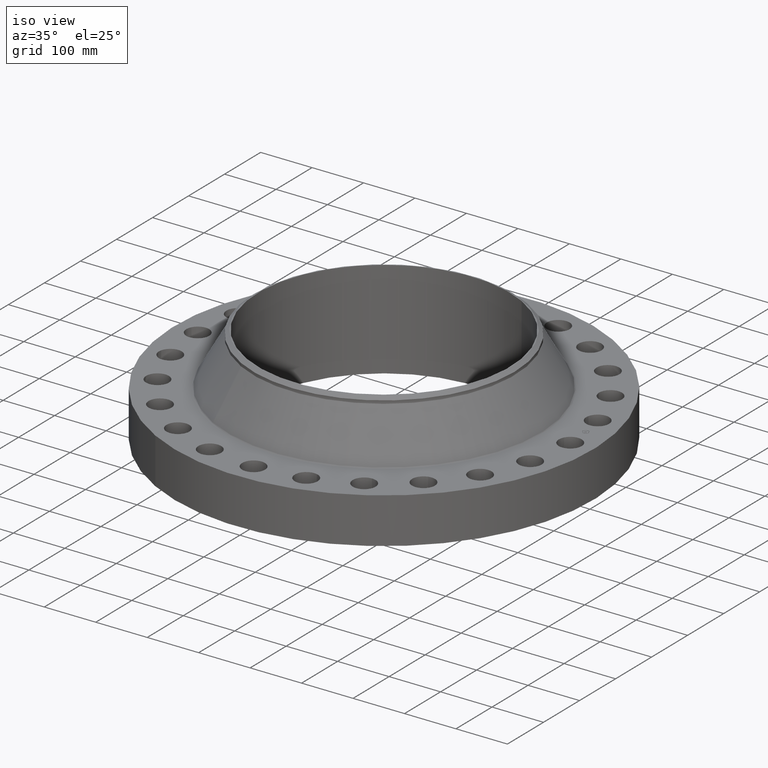
[diagram: clean part render]
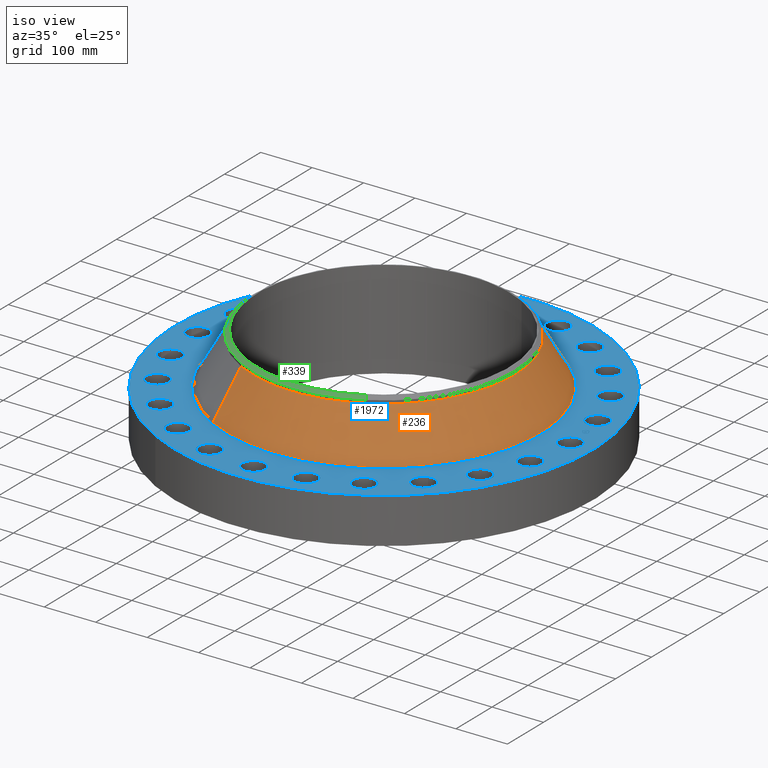
[diagram: same view with three faces highlighted in distinct colors, each labeled with its STEP entity id]
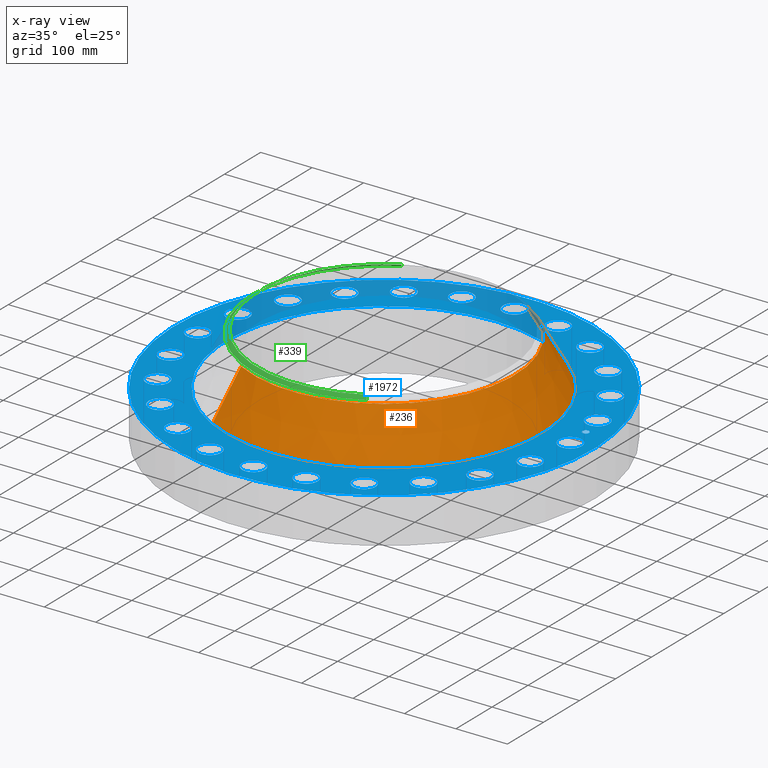
[diagram: x-ray of the same camera — body ghosted, the three highlighted faces saturated]
A machine part, iso view with three faces highlighted in distinct colors.
The next image is the same camera in x-ray (body ghosted, the three faces saturated) — at least one of them is partly hidden behind the body in this view.
Their STEP definitions:

[orange] entity #236 — the highlighted conical surface has half-angle 29.49 deg.
#172=AXIS2_PLACEMENT_3D('Circle Axis2P3D',#170,#171,$) ;
#209=AXIS2_PLACEMENT_3D('Cone Axis2P3D',#206,#207,#208) ;
#220=AXIS2_PLACEMENT_3D('Circle Axis2P3D',#218,#219,$) ;
#167=CARTESIAN_POINT('Vertex',(5.73658691231,10.5007519075,3.56092769751)) ;
#170=CARTESIAN_POINT('Axis2P3D Location',(0.,0.,3.56092769751)) ;
#174=CARTESIAN_POINT('Vertex',(-5.73658691231,-10.5007519075,3.56092769751)) ;
#206=CARTESIAN_POINT('Axis2P3D Location',(0.,0.,7.03645135497)) ;
#211=CARTESIAN_POINT('Line Origine',(5.26542114919,9.63828876323,5.29868952624)) ;
#215=CARTESIAN_POINT('Vertex',(4.79425538606,8.77582561894,7.03645135497)) ;
#218=CARTESIAN_POINT('Axis2P3D Location',(0.,0.,7.03645135497)) ;
#222=CARTESIAN_POINT('Vertex',(-4.79425538606,-8.77582561894,7.03645135497)) ;
#225=CARTESIAN_POINT('Line Origine',(-5.26542114919,-9.63828876323,5.29868952624)) ;
#171=DIRECTION('Axis2P3D Direction',(0.,0.,-0.0393700787402)) ;
#207=DIRECTION('Axis2P3D Direction',(0.,0.,-0.0393700787402)) ;
#208=DIRECTION('Axis2P3D XDirection',(-0.0188750212049,-0.0345504945626,0.)) ;
#212=DIRECTION('Vector Direction',(0.00929159135356,0.0170081438879,-0.034269410144)) ;
#219=DIRECTION('Axis2P3D Direction',(0.,0.,-0.0393700787402)) ;
#226=DIRECTION('Vector Direction',(-0.00929159135356,-0.0170081438879,-0.034269410144)) ;
#213=VECTOR('Line Direction',#212,0.0393700787402) ;
#227=VECTOR('Line Direction',#226,0.0393700787402) ;
#231=ORIENTED_EDGE('',*,*,#176,.F.) ;
#232=ORIENTED_EDGE('',*,*,#217,.T.) ;
#233=ORIENTED_EDGE('',*,*,#224,.T.) ;
#234=ORIENTED_EDGE('',*,*,#229,.F.) ;
#236=ADVANCED_FACE('PartBody',(#235),#210,.T.) ;
#173=CIRCLE('generated circle',#172,11.965543031) ;
#221=CIRCLE('generated circle',#220,10.) ;
#210=CONICAL_SURFACE('Cone',#209,10.,0.514694771037) ;
#176=EDGE_CURVE('',#168,#175,#173,.T.) ;
#217=EDGE_CURVE('',#168,#216,#214,.F.) ;
#224=EDGE_CURVE('',#216,#223,#221,.T.) ;
#229=EDGE_CURVE('',#175,#223,#228,.F.) ;
#230=EDGE_LOOP('',(#231,#232,#233,#234)) ;
#235=FACE_OUTER_BOUND('',#230,.T.) ;
#214=LINE('Line',#211,#213) ;
#228=LINE('Line',#225,#227) ;
#168=VERTEX_POINT('',#167) ;
#175=VERTEX_POINT('',#174) ;
#216=VERTEX_POINT('',#215) ;
#223=VERTEX_POINT('',#222) ;

[blue] entity #1972 — the highlighted planar face has unit normal (0, 0, -1).
#65=AXIS2_PLACEMENT_3D('Circle Axis2P3D',#63,#64,$) ;
#82=AXIS2_PLACEMENT_3D('Circle Axis2P3D',#80,#81,$) ;
#115=AXIS2_PLACEMENT_3D('Circle Axis2P3D',#113,#114,$) ;
#139=AXIS2_PLACEMENT_3D('Circle Axis2P3D',#137,#138,$) ;
#156=AXIS2_PLACEMENT_3D('Circle Axis2P3D',#154,#155,$) ;
#191=AXIS2_PLACEMENT_3D('Circle Axis2P3D',#189,#190,$) ;
#877=AXIS2_PLACEMENT_3D('Circle Axis2P3D',#875,#876,$) ;
#889=AXIS2_PLACEMENT_3D('Circle Axis2P3D',#887,#888,$) ;
#920=AXIS2_PLACEMENT_3D('Circle Axis2P3D',#918,#919,$) ;
#932=AXIS2_PLACEMENT_3D('Circle Axis2P3D',#930,#931,$) ;
#963=AXIS2_PLACEMENT_3D('Circle Axis2P3D',#961,#962,$) ;
#975=AXIS2_PLACEMENT_3D('Circle Axis2P3D',#973,#974,$) ;
#1006=AXIS2_PLACEMENT_3D('Circle Axis2P3D',#1004,#1005,$) ;
#1018=AXIS2_PLACEMENT_3D('Circle Axis2P3D',#1016,#1017,$) ;
#1049=AXIS2_PLACEMENT_3D('Circle Axis2P3D',#1047,#1048,$) ;
#1061=AXIS2_PLACEMENT_3D('Circle Axis2P3D',#1059,#1060,$) ;
#1092=AXIS2_PLACEMENT_3D('Circle Axis2P3D',#1090,#1091,$) ;
#1104=AXIS2_PLACEMENT_3D('Circle Axis2P3D',#1102,#1103,$) ;
#1135=AXIS2_PLACEMENT_3D('Circle Axis2P3D',#1133,#1134,$) ;
#1147=AXIS2_PLACEMENT_3D('Circle Axis2P3D',#1145,#1146,$) ;
#1178=AXIS2_PLACEMENT_3D('Circle Axis2P3D',#1176,#1177,$) ;
#1190=AXIS2_PLACEMENT_3D('Circle Axis2P3D',#1188,#1189,$) ;
#1221=AXIS2_PLACEMENT_3D('Circle Axis2P3D',#1219,#1220,$) ;
#1233=AXIS2_PLACEMENT_3D('Circle Axis2P3D',#1231,#1232,$) ;
#1264=AXIS2_PLACEMENT_3D('Circle Axis2P3D',#1262,#1263,$) ;
#1276=AXIS2_PLACEMENT_3D('Circle Axis2P3D',#1274,#1275,$) ;
#1307=AXIS2_PLACEMENT_3D('Circle Axis2P3D',#1305,#1306,$) ;
#1319=AXIS2_PLACEMENT_3D('Circle Axis2P3D',#1317,#1318,$) ;
#1350=AXIS2_PLACEMENT_3D('Circle Axis2P3D',#1348,#1349,$) ;
#1362=AXIS2_PLACEMENT_3D('Circle Axis2P3D',#1360,#1361,$) ;
#1393=AXIS2_PLACEMENT_3D('Circle Axis2P3D',#1391,#1392,$) ;
#1405=AXIS2_PLACEMENT_3D('Circle Axis2P3D',#1403,#1404,$) ;
#1436=AXIS2_PLACEMENT_3D('Circle Axis2P3D',#1434,#1435,$) ;
#1448=AXIS2_PLACEMENT_3D('Circle Axis2P3D',#1446,#1447,$) ;
#1479=AXIS2_PLACEMENT_3D('Circle Axis2P3D',#1477,#1478,$) ;
#1491=AXIS2_PLACEMENT_3D('Circle Axis2P3D',#1489,#1490,$) ;
#1522=AXIS2_PLACEMENT_3D('Circle Axis2P3D',#1520,#1521,$) ;
#1534=AXIS2_PLACEMENT_3D('Circle Axis2P3D',#1532,#1533,$) ;
#1565=AXIS2_PLACEMENT_3D('Circle Axis2P3D',#1563,#1564,$) ;
#1577=AXIS2_PLACEMENT_3D('Circle Axis2P3D',#1575,#1576,$) ;
#1608=AXIS2_PLACEMENT_3D('Circle Axis2P3D',#1606,#1607,$) ;
#1620=AXIS2_PLACEMENT_3D('Circle Axis2P3D',#1618,#1619,$) ;
#1651=AXIS2_PLACEMENT_3D('Circle Axis2P3D',#1649,#1650,$) ;
#1663=AXIS2_PLACEMENT_3D('Circle Axis2P3D',#1661,#1662,$) ;
#1694=AXIS2_PLACEMENT_3D('Circle Axis2P3D',#1692,#1693,$) ;
#1706=AXIS2_PLACEMENT_3D('Circle Axis2P3D',#1704,#1705,$) ;
#1737=AXIS2_PLACEMENT_3D('Circle Axis2P3D',#1735,#1736,$) ;
#1749=AXIS2_PLACEMENT_3D('Circle Axis2P3D',#1747,#1748,$) ;
#1780=AXIS2_PLACEMENT_3D('Circle Axis2P3D',#1778,#1779,$) ;
#1792=AXIS2_PLACEMENT_3D('Circle Axis2P3D',#1790,#1791,$) ;
#1823=AXIS2_PLACEMENT_3D('Circle Axis2P3D',#1821,#1822,$) ;
#1835=AXIS2_PLACEMENT_3D('Circle Axis2P3D',#1833,#1834,$) ;
#1848=AXIS2_PLACEMENT_3D('Plane Axis2P3D',#1845,#1846,#1847) ;
#1956=AXIS2_PLACEMENT_3D('Circle Axis2P3D',#1954,#1955,$) ;
#1965=AXIS2_PLACEMENT_3D('Circle Axis2P3D',#1963,#1964,$) ;
#46=CARTESIAN_POINT('Vertex',(13.4821152584,0.41949734628,3.50000000001)) ;
#60=CARTESIAN_POINT('Vertex',(15.0178847417,-0.41949734628,3.50000000001)) ;
#63=CARTESIAN_POINT('Axis2P3D Location',(14.2500000001,0.,3.50000000001)) ;
#80=CARTESIAN_POINT('Axis2P3D Location',(14.2500000001,0.,3.50000000001)) ;
#110=CARTESIAN_POINT('Vertex',(-7.6708086177,-14.0413209903,3.50000000001)) ;
#113=CARTESIAN_POINT('Axis2P3D Location',(0.,0.,3.50000000001)) ;
#117=CARTESIAN_POINT('Vertex',(7.6708086177,14.0413209903,3.50000000001)) ;
#137=CARTESIAN_POINT('Axis2P3D Location',(0.,0.,3.50000000001)) ;
#154=CARTESIAN_POINT('Axis2P3D Location',(0.,0.,3.50000000001)) ;
#158=CARTESIAN_POINT('Vertex',(5.78666442582,10.5924181811,3.50000000001)) ;
#160=CARTESIAN_POINT('Vertex',(-5.78666442582,-10.5924181811,3.50000000001)) ;
#189=CARTESIAN_POINT('Axis2P3D Location',(0.,0.,3.50000000001)) ;
#865=CARTESIAN_POINT('Vertex',(-13.1312972237,3.08422487631,3.50000000001)) ;
#872=CARTESIAN_POINT('Vertex',(-14.3975888257,4.29211790914,3.50000000001)) ;
#875=CARTESIAN_POINT('Axis2P3D Location',(-13.7644430247,3.68817139273,3.50000000001)) ;
#887=CARTESIAN_POINT('Axis2P3D Location',(-13.7644430247,3.68817139273,3.50000000001)) ;
#908=CARTESIAN_POINT('Vertex',(11.8856029837,-6.3777622705,3.50000000001)) ;
#915=CARTESIAN_POINT('Vertex',(12.7961210243,-7.87223772956,3.50000000001)) ;
#918=CARTESIAN_POINT('Axis2P3D Location',(12.340862004,-7.12500000003,3.50000000001)) ;
#930=CARTESIAN_POINT('Axis2P3D Location',(12.340862004,-7.12500000003,3.50000000001)) ;
#951=CARTESIAN_POINT('Vertex',(-11.8856029837,6.3777622705,3.50000000001)) ;
#958=CARTESIAN_POINT('Vertex',(-12.7961210243,7.87223772956,3.50000000001)) ;
#961=CARTESIAN_POINT('Axis2P3D Location',(-12.340862004,7.12500000003,3.50000000001)) ;
#973=CARTESIAN_POINT('Axis2P3D Location',(-12.340862004,7.12500000003,3.50000000001)) ;
#994=CARTESIAN_POINT('Vertex',(9.8299245422,-9.23666570571,3.50000000001)) ;
#1001=CARTESIAN_POINT('Vertex',(10.3226187217,-10.9158775582,3.50000000001)) ;
#1004=CARTESIAN_POINT('Axis2P3D Location',(10.0762716319,-10.0762716319,3.50000000001)) ;
#1016=CARTESIAN_POINT('Axis2P3D Location',(10.0762716319,-10.0762716319,3.50000000001)) ;
#1037=CARTESIAN_POINT('Vertex',(-9.8299245422,9.23666570571,3.50000000001)) ;
#1044=CARTESIAN_POINT('Vertex',(-10.3226187217,10.9158775582,3.50000000001)) ;
#1047=CARTESIAN_POINT('Axis2P3D Location',(-10.0762716319,10.0762716319,3.50000000001)) ;
#1059=CARTESIAN_POINT('Axis2P3D Location',(-10.0762716319,10.0762716319,3.50000000001)) ;
#1080=CARTESIAN_POINT('Vertex',(7.1043529879,-11.4661056374,3.50000000001)) ;
#1087=CARTESIAN_POINT('Vertex',(7.14564701216,-13.2156183706,3.50000000001)) ;
#1090=CARTESIAN_POINT('Axis2P3D Location',(7.12500000003,-12.340862004,3.50000000001)) ;
#1102=CARTESIAN_POINT('Axis2P3D Location',(7.12500000003,-12.340862004,3.50000000001)) ;
#1123=CARTESIAN_POINT('Vertex',(-7.1043529879,11.4661056374,3.50000000001)) ;
#1130=CARTESIAN_POINT('Vertex',(-7.14564701216,13.2156183706,3.50000000001)) ;
#1133=CARTESIAN_POINT('Axis2P3D Location',(-7.12500000003,12.340862004,3.50000000001)) ;
#1145=CARTESIAN_POINT('Axis2P3D Location',(-7.12500000003,12.340862004,3.50000000001)) ;
#1166=CARTESIAN_POINT('Vertex',(3.89463151797,-12.9141494185,3.50000000001)) ;
#1173=CARTESIAN_POINT('Vertex',(3.48171126748,-14.6147366308,3.50000000001)) ;
#1176=CARTESIAN_POINT('Axis2P3D Location',(3.68817139273,-13.7644430247,3.50000000001)) ;
#1188=CARTESIAN_POINT('Axis2P3D Location',(3.68817139273,-13.7644430247,3.50000000001)) ;
#1209=CARTESIAN_POINT('Vertex',(-3.89463151797,12.9141494185,3.50000000001)) ;
#1216=CARTESIAN_POINT('Vertex',(-3.48171126748,14.6147366308,3.50000000001)) ;
#1219=CARTESIAN_POINT('Axis2P3D Location',(-3.68817139273,13.7644430247,3.50000000001)) ;
#1231=CARTESIAN_POINT('Axis2P3D Location',(-3.68817139273,13.7644430247,3.50000000001)) ;
#1252=CARTESIAN_POINT('Vertex',(0.41949734628,-13.4821152584,3.50000000001)) ;
#1259=CARTESIAN_POINT('Vertex',(-0.41949734628,-15.0178847417,3.50000000001)) ;
#1262=CARTESIAN_POINT('Axis2P3D Location',(-1.36536903201E-015,-14.2500000001,3.50000000001)) ;
#1274=CARTESIAN_POINT('Axis2P3D Location',(-1.36536903201E-015,-14.2500000001,3.50000000001)) ;
#1295=CARTESIAN_POINT('Vertex',(-0.41949734628,13.4821152584,3.50000000001)) ;
#1302=CARTESIAN_POINT('Vertex',(0.41949734628,15.0178847417,3.50000000001)) ;
#1305=CARTESIAN_POINT('Axis2P3D Location',(-2.61768253319E-015,14.2500000001,3.50000000001)) ;
#1317=CARTESIAN_POINT('Axis2P3D Location',(-2.61768253319E-015,14.2500000001,3.50000000001)) ;
#1338=CARTESIAN_POINT('Vertex',(-3.08422487631,-13.1312972237,3.50000000001)) ;
#1345=CARTESIAN_POINT('Vertex',(-4.29211790914,-14.3975888257,3.50000000001)) ;
#1348=CARTESIAN_POINT('Axis2P3D Location',(-3.68817139273,-13.7644430247,3.50000000001)) ;
#1360=CARTESIAN_POINT('Axis2P3D Location',(-3.68817139273,-13.7644430247,3.50000000001)) ;
#1381=CARTESIAN_POINT('Vertex',(3.08422487631,13.1312972237,3.50000000001)) ;
#1388=CARTESIAN_POINT('Vertex',(4.29211790914,14.3975888257,3.50000000001)) ;
#1391=CARTESIAN_POINT('Axis2P3D Location',(3.68817139273,13.7644430247,3.50000000001)) ;
#1403=CARTESIAN_POINT('Axis2P3D Location',(3.68817139273,13.7644430247,3.50000000001)) ;
#1424=CARTESIAN_POINT('Vertex',(-6.3777622705,-11.8856029837,3.50000000001)) ;
#1431=CARTESIAN_POINT('Vertex',(-7.87223772956,-12.7961210243,3.50000000001)) ;
#1434=CARTESIAN_POINT('Axis2P3D Location',(-7.12500000003,-12.340862004,3.50000000001)) ;
#1446=CARTESIAN_POINT('Axis2P3D Location',(-7.12500000003,-12.340862004,3.50000000001)) ;
#1467=CARTESIAN_POINT('Vertex',(6.3777622705,11.8856029837,3.50000000001)) ;
#1474=CARTESIAN_POINT('Vertex',(7.87223772956,12.7961210243,3.50000000001)) ;
#1477=CARTESIAN_POINT('Axis2P3D Location',(7.12500000003,12.340862004,3.50000000001)) ;
#1489=CARTESIAN_POINT('Axis2P3D Location',(7.12500000003,12.340862004,3.50000000001)) ;
#1510=CARTESIAN_POINT('Vertex',(-9.23666570571,-9.8299245422,3.50000000001)) ;
#1517=CARTESIAN_POINT('Vertex',(-10.9158775582,-10.3226187217,3.50000000001)) ;
#1520=CARTESIAN_POINT('Axis2P3D Location',(-10.0762716319,-10.0762716319,3.50000000001)) ;
#1532=CARTESIAN_POINT('Axis2P3D Location',(-10.0762716319,-10.0762716319,3.50000000001)) ;
#1553=CARTESIAN_POINT('Vertex',(9.23666570571,9.8299245422,3.50000000001)) ;
#1560=CARTESIAN_POINT('Vertex',(10.9158775582,10.3226187217,3.50000000001)) ;
#1563=CARTESIAN_POINT('Axis2P3D Location',(10.0762716319,10.0762716319,3.50000000001)) ;
#1575=CARTESIAN_POINT('Axis2P3D Location',(10.0762716319,10.0762716319,3.50000000001)) ;
#1596=CARTESIAN_POINT('Vertex',(-11.4661056374,-7.1043529879,3.50000000001)) ;
#1603=CARTESIAN_POINT('Vertex',(-13.2156183706,-7.14564701216,3.50000000001)) ;
#1606=CARTESIAN_POINT('Axis2P3D Location',(-12.340862004,-7.12500000003,3.50000000001)) ;
#1618=CARTESIAN_POINT('Axis2P3D Location',(-12.340862004,-7.12500000003,3.50000000001)) ;
#1639=CARTESIAN_POINT('Vertex',(11.4661056374,7.1043529879,3.50000000001)) ;
#1646=CARTESIAN_POINT('Vertex',(13.2156183706,7.14564701216,3.50000000001)) ;
#1649=CARTESIAN_POINT('Axis2P3D Location',(12.340862004,7.12500000003,3.50000000001)) ;
#1661=CARTESIAN_POINT('Axis2P3D Location',(12.340862004,7.12500000003,3.50000000001)) ;
#1682=CARTESIAN_POINT('Vertex',(-12.9141494185,-3.89463151797,3.50000000001)) ;
#1689=CARTESIAN_POINT('Vertex',(-14.6147366308,-3.48171126748,3.50000000001)) ;
#1692=CARTESIAN_POINT('Axis2P3D Location',(-13.7644430247,-3.68817139273,3.50000000001)) ;
#1704=CARTESIAN_POINT('Axis2P3D Location',(-13.7644430247,-3.68817139273,3.50000000001)) ;
#1725=CARTESIAN_POINT('Vertex',(12.9141494185,3.89463151797,3.50000000001)) ;
#1732=CARTESIAN_POINT('Vertex',(14.6147366308,3.48171126748,3.50000000001)) ;
#1735=CARTESIAN_POINT('Axis2P3D Location',(13.7644430247,3.68817139273,3.50000000001)) ;
#1747=CARTESIAN_POINT('Axis2P3D Location',(13.7644430247,3.68817139273,3.50000000001)) ;
#1768=CARTESIAN_POINT('Vertex',(-13.4821152584,-0.41949734628,3.50000000001)) ;
#1775=CARTESIAN_POINT('Vertex',(-15.0178847417,0.41949734628,3.50000000001)) ;
#1778=CARTESIAN_POINT('Axis2P3D Location',(-14.2500000001,-1.74512168879E-015,3.50000000001)) ;
#1790=CARTESIAN_POINT('Axis2P3D Location',(-14.2500000001,-1.74512168879E-015,3.50000000001)) ;
#1811=CARTESIAN_POINT('Vertex',(13.1312972237,-3.08422487631,3.50000000001)) ;
#1818=CARTESIAN_POINT('Vertex',(14.3975888257,-4.29211790914,3.50000000001)) ;
#1821=CARTESIAN_POINT('Axis2P3D Location',(13.7644430247,-3.68817139273,3.50000000001)) ;
#1833=CARTESIAN_POINT('Axis2P3D Location',(13.7644430247,-3.68817139273,3.50000000001)) ;
#1845=CARTESIAN_POINT('Axis2P3D Location',(0.,16.0000000001,3.50000000001)) ;
#1954=CARTESIAN_POINT('Axis2P3D Location',(14.1280892746,1.85999823914,3.50000000001)) ;
#1958=CARTESIAN_POINT('Vertex',(14.0957840421,2.10538084233,3.50000000001)) ;
#1960=CARTESIAN_POINT('Vertex',(14.1603945072,1.61461563595,3.50000000001)) ;
#1963=CARTESIAN_POINT('Axis2P3D Location',(14.1280892746,1.85999823914,3.50000000001)) ;
#64=DIRECTION('Axis2P3D Direction',(0.,-0.,-0.0393700787402)) ;
#81=DIRECTION('Axis2P3D Direction',(0.,-0.,-0.0393700787402)) ;
#114=DIRECTION('Axis2P3D Direction',(0.,0.,-0.0393700787402)) ;
#138=DIRECTION('Axis2P3D Direction',(0.,0.,-0.0393700787402)) ;
#155=DIRECTION('Axis2P3D Direction',(0.,0.,-0.0393700787402)) ;
#190=DIRECTION('Axis2P3D Direction',(0.,0.,-0.0393700787402)) ;
#876=DIRECTION('Axis2P3D Direction',(0.,0.,-0.0393700787402)) ;
#888=DIRECTION('Axis2P3D Direction',(0.,0.,-0.0393700787402)) ;
#919=DIRECTION('Axis2P3D Direction',(0.,-0.,-0.0393700787402)) ;
#931=DIRECTION('Axis2P3D Direction',(0.,-0.,-0.0393700787402)) ;
#962=DIRECTION('Axis2P3D Direction',(0.,0.,-0.0393700787402)) ;
#974=DIRECTION('Axis2P3D Direction',(0.,0.,-0.0393700787402)) ;
#1005=DIRECTION('Axis2P3D Direction',(0.,-0.,-0.0393700787402)) ;
#1017=DIRECTION('Axis2P3D Direction',(0.,-0.,-0.0393700787402)) ;
#1048=DIRECTION('Axis2P3D Direction',(0.,0.,-0.0393700787402)) ;
#1060=DIRECTION('Axis2P3D Direction',(0.,0.,-0.0393700787402)) ;
#1091=DIRECTION('Axis2P3D Direction',(0.,-0.,-0.0393700787402)) ;
#1103=DIRECTION('Axis2P3D Direction',(0.,-0.,-0.0393700787402)) ;
#1134=DIRECTION('Axis2P3D Direction',(0.,0.,-0.0393700787402)) ;
#1146=DIRECTION('Axis2P3D Direction',(0.,0.,-0.0393700787402)) ;
#1177=DIRECTION('Axis2P3D Direction',(0.,-0.,-0.0393700787402)) ;
#1189=DIRECTION('Axis2P3D Direction',(0.,-0.,-0.0393700787402)) ;
#1220=DIRECTION('Axis2P3D Direction',(0.,0.,-0.0393700787402)) ;
#1232=DIRECTION('Axis2P3D Direction',(0.,0.,-0.0393700787402)) ;
#1263=DIRECTION('Axis2P3D Direction',(0.,-0.,-0.0393700787402)) ;
#1275=DIRECTION('Axis2P3D Direction',(0.,-0.,-0.0393700787402)) ;
#1306=DIRECTION('Axis2P3D Direction',(0.,0.,-0.0393700787402)) ;
#1318=DIRECTION('Axis2P3D Direction',(0.,0.,-0.0393700787402)) ;
#1349=DIRECTION('Axis2P3D Direction',(-0.,0.,-0.0393700787402)) ;
#1361=DIRECTION('Axis2P3D Direction',(-0.,0.,-0.0393700787402)) ;
#1392=DIRECTION('Axis2P3D Direction',(0.,0.,-0.0393700787402)) ;
#1404=DIRECTION('Axis2P3D Direction',(0.,0.,-0.0393700787402)) ;
#1435=DIRECTION('Axis2P3D Direction',(-0.,0.,-0.0393700787402)) ;
#1447=DIRECTION('Axis2P3D Direction',(-0.,0.,-0.0393700787402)) ;
#1478=DIRECTION('Axis2P3D Direction',(0.,0.,-0.0393700787402)) ;
#1490=DIRECTION('Axis2P3D Direction',(0.,0.,-0.0393700787402)) ;
#1521=DIRECTION('Axis2P3D Direction',(-0.,0.,-0.0393700787402)) ;
#1533=DIRECTION('Axis2P3D Direction',(-0.,0.,-0.0393700787402)) ;
#1564=DIRECTION('Axis2P3D Direction',(0.,0.,-0.0393700787402)) ;
#1576=DIRECTION('Axis2P3D Direction',(0.,0.,-0.0393700787402)) ;
#1607=DIRECTION('Axis2P3D Direction',(-0.,0.,-0.0393700787402)) ;
#1619=DIRECTION('Axis2P3D Direction',(-0.,0.,-0.0393700787402)) ;
#1650=DIRECTION('Axis2P3D Direction',(0.,0.,-0.0393700787402)) ;
#1662=DIRECTION('Axis2P3D Direction',(0.,0.,-0.0393700787402)) ;
#1693=DIRECTION('Axis2P3D Direction',(-0.,0.,-0.0393700787402)) ;
#1705=DIRECTION('Axis2P3D Direction',(-0.,0.,-0.0393700787402)) ;
#1736=DIRECTION('Axis2P3D Direction',(0.,0.,-0.0393700787402)) ;
#1748=DIRECTION('Axis2P3D Direction',(0.,0.,-0.0393700787402)) ;
#1779=DIRECTION('Axis2P3D Direction',(-0.,0.,-0.0393700787402)) ;
#1791=DIRECTION('Axis2P3D Direction',(-0.,0.,-0.0393700787402)) ;
#1822=DIRECTION('Axis2P3D Direction',(0.,-0.,-0.0393700787402)) ;
#1834=DIRECTION('Axis2P3D Direction',(0.,-0.,-0.0393700787402)) ;
#1846=DIRECTION('Axis2P3D Direction',(0.,0.,-0.0393700787402)) ;
#1847=DIRECTION('Axis2P3D XDirection',(0.0393700787402,0.,0.)) ;
#1955=DIRECTION('Axis2P3D Direction',(0.,0.,-0.0393700787402)) ;
#1964=DIRECTION('Axis2P3D Direction',(0.,0.,-0.0393700787402)) ;
#1851=ORIENTED_EDGE('',*,*,#141,.F.) ;
#1852=ORIENTED_EDGE('',*,*,#119,.F.) ;
#1855=ORIENTED_EDGE('',*,*,#67,.T.) ;
#1856=ORIENTED_EDGE('',*,*,#84,.T.) ;
#1859=ORIENTED_EDGE('',*,*,#193,.T.) ;
#1860=ORIENTED_EDGE('',*,*,#162,.T.) ;
#1863=ORIENTED_EDGE('',*,*,#1837,.T.) ;
#1864=ORIENTED_EDGE('',*,*,#1825,.T.) ;
#1867=ORIENTED_EDGE('',*,*,#934,.T.) ;
#1868=ORIENTED_EDGE('',*,*,#922,.T.) ;
#1871=ORIENTED_EDGE('',*,*,#1020,.T.) ;
#1872=ORIENTED_EDGE('',*,*,#1008,.T.) ;
#1875=ORIENTED_EDGE('',*,*,#1106,.T.) ;
#1876=ORIENTED_EDGE('',*,*,#1094,.T.) ;
#1879=ORIENTED_EDGE('',*,*,#1192,.T.) ;
#1880=ORIENTED_EDGE('',*,*,#1180,.T.) ;
#1883=ORIENTED_EDGE('',*,*,#1278,.T.) ;
#1884=ORIENTED_EDGE('',*,*,#1266,.T.) ;
#1887=ORIENTED_EDGE('',*,*,#1364,.T.) ;
#1888=ORIENTED_EDGE('',*,*,#1352,.T.) ;
#1891=ORIENTED_EDGE('',*,*,#1450,.T.) ;
#1892=ORIENTED_EDGE('',*,*,#1438,.T.) ;
#1895=ORIENTED_EDGE('',*,*,#1536,.T.) ;
#1896=ORIENTED_EDGE('',*,*,#1524,.T.) ;
#1899=ORIENTED_EDGE('',*,*,#1622,.T.) ;
#1900=ORIENTED_EDGE('',*,*,#1610,.T.) ;
#1903=ORIENTED_EDGE('',*,*,#1708,.T.) ;
#1904=ORIENTED_EDGE('',*,*,#1696,.T.) ;
#1907=ORIENTED_EDGE('',*,*,#1794,.T.) ;
#1908=ORIENTED_EDGE('',*,*,#1782,.T.) ;
#1911=ORIENTED_EDGE('',*,*,#891,.T.) ;
#1912=ORIENTED_EDGE('',*,*,#879,.T.) ;
#1915=ORIENTED_EDGE('',*,*,#977,.T.) ;
#1916=ORIENTED_EDGE('',*,*,#965,.T.) ;
#1919=ORIENTED_EDGE('',*,*,#1063,.T.) ;
#1920=ORIENTED_EDGE('',*,*,#1051,.T.) ;
#1923=ORIENTED_EDGE('',*,*,#1149,.T.) ;
#1924=ORIENTED_EDGE('',*,*,#1137,.T.) ;
#1927=ORIENTED_EDGE('',*,*,#1235,.T.) ;
#1928=ORIENTED_EDGE('',*,*,#1223,.T.) ;
#1931=ORIENTED_EDGE('',*,*,#1321,.T.) ;
#1932=ORIENTED_EDGE('',*,*,#1309,.T.) ;
#1935=ORIENTED_EDGE('',*,*,#1407,.T.) ;
#1936=ORIENTED_EDGE('',*,*,#1395,.T.) ;
#1939=ORIENTED_EDGE('',*,*,#1493,.T.) ;
#1940=ORIENTED_EDGE('',*,*,#1481,.T.) ;
#1943=ORIENTED_EDGE('',*,*,#1579,.T.) ;
#1944=ORIENTED_EDGE('',*,*,#1567,.T.) ;
#1947=ORIENTED_EDGE('',*,*,#1665,.T.) ;
#1948=ORIENTED_EDGE('',*,*,#1653,.T.) ;
#1951=ORIENTED_EDGE('',*,*,#1751,.T.) ;
#1952=ORIENTED_EDGE('',*,*,#1739,.T.) ;
#1969=ORIENTED_EDGE('',*,*,#1962,.T.) ;
#1970=ORIENTED_EDGE('',*,*,#1967,.T.) ;
#1857=FACE_BOUND('',#1854,.T.) ;
#1861=FACE_BOUND('',#1858,.T.) ;
#1865=FACE_BOUND('',#1862,.T.) ;
#1869=FACE_BOUND('',#1866,.T.) ;
#1873=FACE_BOUND('',#1870,.T.) ;
#1877=FACE_BOUND('',#1874,.T.) ;
#1881=FACE_BOUND('',#1878,.T.) ;
#1885=FACE_BOUND('',#1882,.T.) ;
#1889=FACE_BOUND('',#1886,.T.) ;
#1893=FACE_BOUND('',#1890,.T.) ;
#1897=FACE_BOUND('',#1894,.T.) ;
#1901=FACE_BOUND('',#1898,.T.) ;
#1905=FACE_BOUND('',#1902,.T.) ;
#1909=FACE_BOUND('',#1906,.T.) ;
#1913=FACE_BOUND('',#1910,.T.) ;
#1917=FACE_BOUND('',#1914,.T.) ;
#1921=FACE_BOUND('',#1918,.T.) ;
#1925=FACE_BOUND('',#1922,.T.) ;
#1929=FACE_BOUND('',#1926,.T.) ;
#1933=FACE_BOUND('',#1930,.T.) ;
#1937=FACE_BOUND('',#1934,.T.) ;
#1941=FACE_BOUND('',#1938,.T.) ;
#1945=FACE_BOUND('',#1942,.T.) ;
#1949=FACE_BOUND('',#1946,.T.) ;
#1953=FACE_BOUND('',#1950,.T.) ;
#1971=FACE_BOUND('',#1968,.T.) ;
#1972=ADVANCED_FACE('PartBody',(#1853,#1857,#1861,#1865,#1869,#1873,#1877,#1881,#1885,#1889,#1893,#1897,#1901,#1905,#1909,#1913,#1917,#1921,#1925,#1929,#1933,#1937,#1941,#1945,#1949,#1953,#1971),#1849,.F.) ;
#66=CIRCLE('generated circle',#65,0.875000000004) ;
#83=CIRCLE('generated circle',#82,0.875000000004) ;
#116=CIRCLE('generated circle',#115,16.0000000001) ;
#140=CIRCLE('generated circle',#139,16.0000000001) ;
#157=CIRCLE('generated circle',#156,12.0699961931) ;
#192=CIRCLE('generated circle',#191,12.0699961931) ;
#878=CIRCLE('generated circle',#877,0.875000000004) ;
#890=CIRCLE('generated circle',#889,0.875000000004) ;
#921=CIRCLE('generated circle',#920,0.875000000003) ;
#933=CIRCLE('generated circle',#932,0.875000000003) ;
#964=CIRCLE('generated circle',#963,0.875000000003) ;
#976=CIRCLE('generated circle',#975,0.875000000003) ;
#1007=CIRCLE('generated circle',#1006,0.875000000004) ;
#1019=CIRCLE('generated circle',#1018,0.875000000004) ;
#1050=CIRCLE('generated circle',#1049,0.875000000004) ;
#1062=CIRCLE('generated circle',#1061,0.875000000004) ;
#1093=CIRCLE('generated circle',#1092,0.875000000003) ;
#1105=CIRCLE('generated circle',#1104,0.875000000003) ;
#1136=CIRCLE('generated circle',#1135,0.875000000003) ;
#1148=CIRCLE('generated circle',#1147,0.875000000003) ;
#1179=CIRCLE('generated circle',#1178,0.875000000004) ;
#1191=CIRCLE('generated circle',#1190,0.875000000004) ;
#1222=CIRCLE('generated circle',#1221,0.875000000004) ;
#1234=CIRCLE('generated circle',#1233,0.875000000004) ;
#1265=CIRCLE('generated circle',#1264,0.875000000004) ;
#1277=CIRCLE('generated circle',#1276,0.875000000004) ;
#1308=CIRCLE('generated circle',#1307,0.875000000004) ;
#1320=CIRCLE('generated circle',#1319,0.875000000004) ;
#1351=CIRCLE('generated circle',#1350,0.875000000004) ;
#1363=CIRCLE('generated circle',#1362,0.875000000004) ;
#1394=CIRCLE('generated circle',#1393,0.875000000004) ;
#1406=CIRCLE('generated circle',#1405,0.875000000004) ;
#1437=CIRCLE('generated circle',#1436,0.875000000003) ;
#1449=CIRCLE('generated circle',#1448,0.875000000003) ;
#1480=CIRCLE('generated circle',#1479,0.875000000003) ;
#1492=CIRCLE('generated circle',#1491,0.875000000003) ;
#1523=CIRCLE('generated circle',#1522,0.875000000003) ;
#1535=CIRCLE('generated circle',#1534,0.875000000003) ;
#1566=CIRCLE('generated circle',#1565,0.875000000004) ;
#1578=CIRCLE('generated circle',#1577,0.875000000004) ;
#1609=CIRCLE('generated circle',#1608,0.875000000003) ;
#1621=CIRCLE('generated circle',#1620,0.875000000003) ;
#1652=CIRCLE('generated circle',#1651,0.875000000003) ;
#1664=CIRCLE('generated circle',#1663,0.875000000003) ;
#1695=CIRCLE('generated circle',#1694,0.875000000004) ;
#1707=CIRCLE('generated circle',#1706,0.875000000004) ;
#1738=CIRCLE('generated circle',#1737,0.875000000004) ;
#1750=CIRCLE('generated circle',#1749,0.875000000004) ;
#1781=CIRCLE('generated circle',#1780,0.875000000004) ;
#1793=CIRCLE('generated circle',#1792,0.875000000004) ;
#1824=CIRCLE('generated circle',#1823,0.875000000004) ;
#1836=CIRCLE('generated circle',#1835,0.875000000004) ;
#1957=CIRCLE('generated circle',#1956,0.247500000001) ;
#1966=CIRCLE('generated circle',#1965,0.247500000001) ;
#67=EDGE_CURVE('',#47,#61,#66,.T.) ;
#84=EDGE_CURVE('',#61,#47,#83,.T.) ;
#119=EDGE_CURVE('',#111,#118,#116,.T.) ;
#141=EDGE_CURVE('',#118,#111,#140,.T.) ;
#162=EDGE_CURVE('',#159,#161,#157,.T.) ;
#193=EDGE_CURVE('',#161,#159,#192,.T.) ;
#879=EDGE_CURVE('',#866,#873,#878,.T.) ;
#891=EDGE_CURVE('',#873,#866,#890,.T.) ;
#922=EDGE_CURVE('',#909,#916,#921,.T.) ;
#934=EDGE_CURVE('',#916,#909,#933,.T.) ;
#965=EDGE_CURVE('',#952,#959,#964,.T.) ;
#977=EDGE_CURVE('',#959,#952,#976,.T.) ;
#1008=EDGE_CURVE('',#995,#1002,#1007,.T.) ;
#1020=EDGE_CURVE('',#1002,#995,#1019,.T.) ;
#1051=EDGE_CURVE('',#1038,#1045,#1050,.T.) ;
#1063=EDGE_CURVE('',#1045,#1038,#1062,.T.) ;
#1094=EDGE_CURVE('',#1081,#1088,#1093,.T.) ;
#1106=EDGE_CURVE('',#1088,#1081,#1105,.T.) ;
#1137=EDGE_CURVE('',#1124,#1131,#1136,.T.) ;
#1149=EDGE_CURVE('',#1131,#1124,#1148,.T.) ;
#1180=EDGE_CURVE('',#1167,#1174,#1179,.T.) ;
#1192=EDGE_CURVE('',#1174,#1167,#1191,.T.) ;
#1223=EDGE_CURVE('',#1210,#1217,#1222,.T.) ;
#1235=EDGE_CURVE('',#1217,#1210,#1234,.T.) ;
#1266=EDGE_CURVE('',#1253,#1260,#1265,.T.) ;
#1278=EDGE_CURVE('',#1260,#1253,#1277,.T.) ;
#1309=EDGE_CURVE('',#1296,#1303,#1308,.T.) ;
#1321=EDGE_CURVE('',#1303,#1296,#1320,.T.) ;
#1352=EDGE_CURVE('',#1339,#1346,#1351,.T.) ;
#1364=EDGE_CURVE('',#1346,#1339,#1363,.T.) ;
#1395=EDGE_CURVE('',#1382,#1389,#1394,.T.) ;
#1407=EDGE_CURVE('',#1389,#1382,#1406,.T.) ;
#1438=EDGE_CURVE('',#1425,#1432,#1437,.T.) ;
#1450=EDGE_CURVE('',#1432,#1425,#1449,.T.) ;
#1481=EDGE_CURVE('',#1468,#1475,#1480,.T.) ;
#1493=EDGE_CURVE('',#1475,#1468,#1492,.T.) ;
#1524=EDGE_CURVE('',#1511,#1518,#1523,.T.) ;
#1536=EDGE_CURVE('',#1518,#1511,#1535,.T.) ;
#1567=EDGE_CURVE('',#1554,#1561,#1566,.T.) ;
#1579=EDGE_CURVE('',#1561,#1554,#1578,.T.) ;
#1610=EDGE_CURVE('',#1597,#1604,#1609,.T.) ;
#1622=EDGE_CURVE('',#1604,#1597,#1621,.T.) ;
#1653=EDGE_CURVE('',#1640,#1647,#1652,.T.) ;
#1665=EDGE_CURVE('',#1647,#1640,#1664,.T.) ;
#1696=EDGE_CURVE('',#1683,#1690,#1695,.T.) ;
#1708=EDGE_CURVE('',#1690,#1683,#1707,.T.) ;
#1739=EDGE_CURVE('',#1726,#1733,#1738,.T.) ;
#1751=EDGE_CURVE('',#1733,#1726,#1750,.T.) ;
#1782=EDGE_CURVE('',#1769,#1776,#1781,.T.) ;
#1794=EDGE_CURVE('',#1776,#1769,#1793,.T.) ;
#1825=EDGE_CURVE('',#1812,#1819,#1824,.T.) ;
#1837=EDGE_CURVE('',#1819,#1812,#1836,.T.) ;
#1962=EDGE_CURVE('',#1959,#1961,#1957,.T.) ;
#1967=EDGE_CURVE('',#1961,#1959,#1966,.T.) ;
#1850=EDGE_LOOP('',(#1851,#1852)) ;
#1854=EDGE_LOOP('',(#1855,#1856)) ;
#1858=EDGE_LOOP('',(#1859,#1860)) ;
#1862=EDGE_LOOP('',(#1863,#1864)) ;
#1866=EDGE_LOOP('',(#1867,#1868)) ;
#1870=EDGE_LOOP('',(#1871,#1872)) ;
#1874=EDGE_LOOP('',(#1875,#1876)) ;
#1878=EDGE_LOOP('',(#1879,#1880)) ;
#1882=EDGE_LOOP('',(#1883,#1884)) ;
#1886=EDGE_LOOP('',(#1887,#1888)) ;
#1890=EDGE_LOOP('',(#1891,#1892)) ;
#1894=EDGE_LOOP('',(#1895,#1896)) ;
#1898=EDGE_LOOP('',(#1899,#1900)) ;
#1902=EDGE_LOOP('',(#1903,#1904)) ;
#1906=EDGE_LOOP('',(#1907,#1908)) ;
#1910=EDGE_LOOP('',(#1911,#1912)) ;
#1914=EDGE_LOOP('',(#1915,#1916)) ;
#1918=EDGE_LOOP('',(#1919,#1920)) ;
#1922=EDGE_LOOP('',(#1923,#1924)) ;
#1926=EDGE_LOOP('',(#1927,#1928)) ;
#1930=EDGE_LOOP('',(#1931,#1932)) ;
#1934=EDGE_LOOP('',(#1935,#1936)) ;
#1938=EDGE_LOOP('',(#1939,#1940)) ;
#1942=EDGE_LOOP('',(#1943,#1944)) ;
#1946=EDGE_LOOP('',(#1947,#1948)) ;
#1950=EDGE_LOOP('',(#1951,#1952)) ;
#1968=EDGE_LOOP('',(#1969,#1970)) ;
#1853=FACE_OUTER_BOUND('',#1850,.T.) ;
#1849=PLANE('',#1848) ;
#47=VERTEX_POINT('',#46) ;
#61=VERTEX_POINT('',#60) ;
#111=VERTEX_POINT('',#110) ;
#118=VERTEX_POINT('',#117) ;
#159=VERTEX_POINT('',#158) ;
#161=VERTEX_POINT('',#160) ;
#866=VERTEX_POINT('',#865) ;
#873=VERTEX_POINT('',#872) ;
#909=VERTEX_POINT('',#908) ;
#916=VERTEX_POINT('',#915) ;
#952=VERTEX_POINT('',#951) ;
#959=VERTEX_POINT('',#958) ;
#995=VERTEX_POINT('',#994) ;
#1002=VERTEX_POINT('',#1001) ;
#1038=VERTEX_POINT('',#1037) ;
#1045=VERTEX_POINT('',#1044) ;
#1081=VERTEX_POINT('',#1080) ;
#1088=VERTEX_POINT('',#1087) ;
#1124=VERTEX_POINT('',#1123) ;
#1131=VERTEX_POINT('',#1130) ;
#1167=VERTEX_POINT('',#1166) ;
#1174=VERTEX_POINT('',#1173) ;
#1210=VERTEX_POINT('',#1209) ;
#1217=VERTEX_POINT('',#1216) ;
#1253=VERTEX_POINT('',#1252) ;
#1260=VERTEX_POINT('',#1259) ;
#1296=VERTEX_POINT('',#1295) ;
#1303=VERTEX_POINT('',#1302) ;
#1339=VERTEX_POINT('',#1338) ;
#1346=VERTEX_POINT('',#1345) ;
#1382=VERTEX_POINT('',#1381) ;
#1389=VERTEX_POINT('',#1388) ;
#1425=VERTEX_POINT('',#1424) ;
#1432=VERTEX_POINT('',#1431) ;
#1468=VERTEX_POINT('',#1467) ;
#1475=VERTEX_POINT('',#1474) ;
#1511=VERTEX_POINT('',#1510) ;
#1518=VERTEX_POINT('',#1517) ;
#1554=VERTEX_POINT('',#1553) ;
#1561=VERTEX_POINT('',#1560) ;
#1597=VERTEX_POINT('',#1596) ;
#1604=VERTEX_POINT('',#1603) ;
#1640=VERTEX_POINT('',#1639) ;
#1647=VERTEX_POINT('',#1646) ;
#1683=VERTEX_POINT('',#1682) ;
#1690=VERTEX_POINT('',#1689) ;
#1726=VERTEX_POINT('',#1725) ;
#1733=VERTEX_POINT('',#1732) ;
#1769=VERTEX_POINT('',#1768) ;
#1776=VERTEX_POINT('',#1775) ;
#1812=VERTEX_POINT('',#1811) ;
#1819=VERTEX_POINT('',#1818) ;
#1959=VERTEX_POINT('',#1958) ;
#1961=VERTEX_POINT('',#1960) ;

[green] entity #339 — the highlighted conical surface has half-angle 52.5 deg.
#277=AXIS2_PLACEMENT_3D('Circle Axis2P3D',#275,#276,$) ;
#290=AXIS2_PLACEMENT_3D('Circle Axis2P3D',#288,#289,$) ;
#311=AXIS2_PLACEMENT_3D('Cone Axis2P3D',#308,#309,#310) ;
#322=AXIS2_PLACEMENT_3D('Circle Axis2P3D',#320,#321,$) ;
#258=CARTESIAN_POINT('Vertex',(-4.79425538606,-8.77582561894,7.27267182741)) ;
#272=CARTESIAN_POINT('Vertex',(4.79425538606,-8.77582561894,7.27267182741)) ;
#275=CARTESIAN_POINT('Axis2P3D Location',(0.,0.,7.27267182741)) ;
#288=CARTESIAN_POINT('Axis2P3D Location',(0.,0.,7.27267182741)) ;
#292=CARTESIAN_POINT('Vertex',(-4.79425538606,8.77582561894,7.27267182741)) ;
#308=CARTESIAN_POINT('Axis2P3D Location',(0.,0.,7.50000000003)) ;
#313=CARTESIAN_POINT('Line Origine',(4.72323811878,-8.64582938315,7.38633591372)) ;
#317=CARTESIAN_POINT('Vertex',(4.65222085149,-8.51583314735,7.50000000003)) ;
#320=CARTESIAN_POINT('Axis2P3D Location',(0.,0.,7.50000000003)) ;
#324=CARTESIAN_POINT('Vertex',(-4.65222085149,8.51583314735,7.50000000003)) ;
#327=CARTESIAN_POINT('Line Origine',(-4.72323811878,8.64582938315,7.38633591372)) ;
#276=DIRECTION('Axis2P3D Direction',(0.,0.,-0.0393700787402)) ;
#289=DIRECTION('Axis2P3D Direction',(0.,0.,-0.0393700787402)) ;
#309=DIRECTION('Axis2P3D Direction',(-0.,-0.,-0.0393700787402)) ;
#310=DIRECTION('Axis2P3D XDirection',(-0.0188750212049,0.0345504945626,0.)) ;
#314=DIRECTION('Vector Direction',(0.014974561121,-0.02741075027,-0.023966985394)) ;
#321=DIRECTION('Axis2P3D Direction',(0.,0.,-0.0393700787402)) ;
#328=DIRECTION('Vector Direction',(-0.014974561121,0.02741075027,-0.023966985394)) ;
#315=VECTOR('Line Direction',#314,0.0393700787402) ;
#329=VECTOR('Line Direction',#328,0.0393700787402) ;
#333=ORIENTED_EDGE('',*,*,#319,.F.) ;
#334=ORIENTED_EDGE('',*,*,#326,.F.) ;
#335=ORIENTED_EDGE('',*,*,#331,.T.) ;
#336=ORIENTED_EDGE('',*,*,#294,.T.) ;
#337=ORIENTED_EDGE('',*,*,#279,.F.) ;
#339=ADVANCED_FACE('PartBody',(#338),#312,.T.) ;
#278=CIRCLE('generated circle',#277,10.) ;
#291=CIRCLE('generated circle',#290,10.) ;
#323=CIRCLE('generated circle',#322,9.70374015752) ;
#312=CONICAL_SURFACE('Cone',#311,9.70374015752,0.916297857297) ;
#279=EDGE_CURVE('',#273,#259,#278,.T.) ;
#294=EDGE_CURVE('',#293,#259,#291,.F.) ;
#319=EDGE_CURVE('',#318,#273,#316,.T.) ;
#326=EDGE_CURVE('',#325,#318,#323,.F.) ;
#331=EDGE_CURVE('',#325,#293,#330,.T.) ;
#332=EDGE_LOOP('',(#333,#334,#335,#336,#337)) ;
#338=FACE_OUTER_BOUND('',#332,.T.) ;
#316=LINE('Line',#313,#315) ;
#330=LINE('Line',#327,#329) ;
#259=VERTEX_POINT('',#258) ;
#273=VERTEX_POINT('',#272) ;
#293=VERTEX_POINT('',#292) ;
#318=VERTEX_POINT('',#317) ;
#325=VERTEX_POINT('',#324) ;